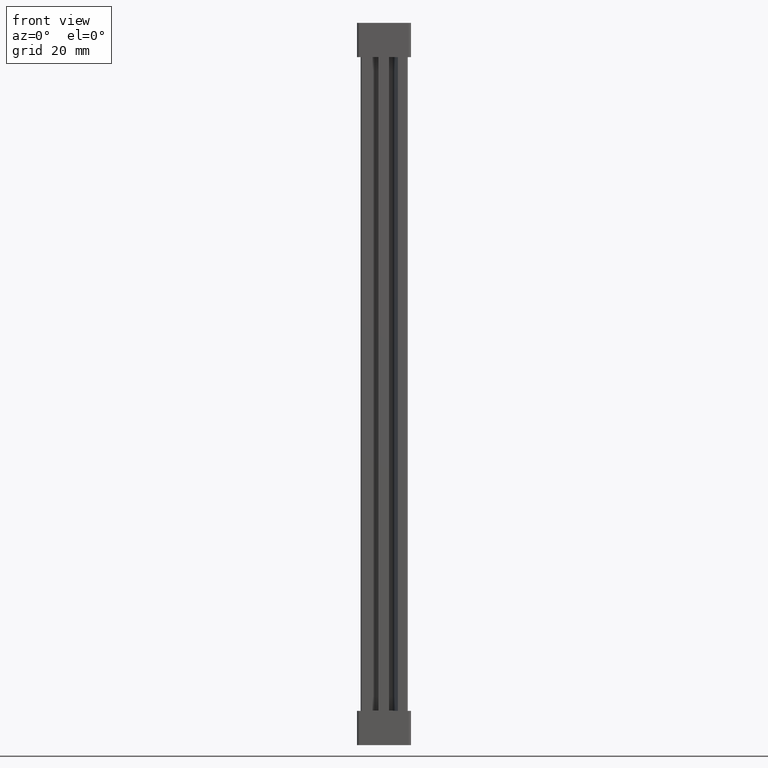
[diagram: clean part render]
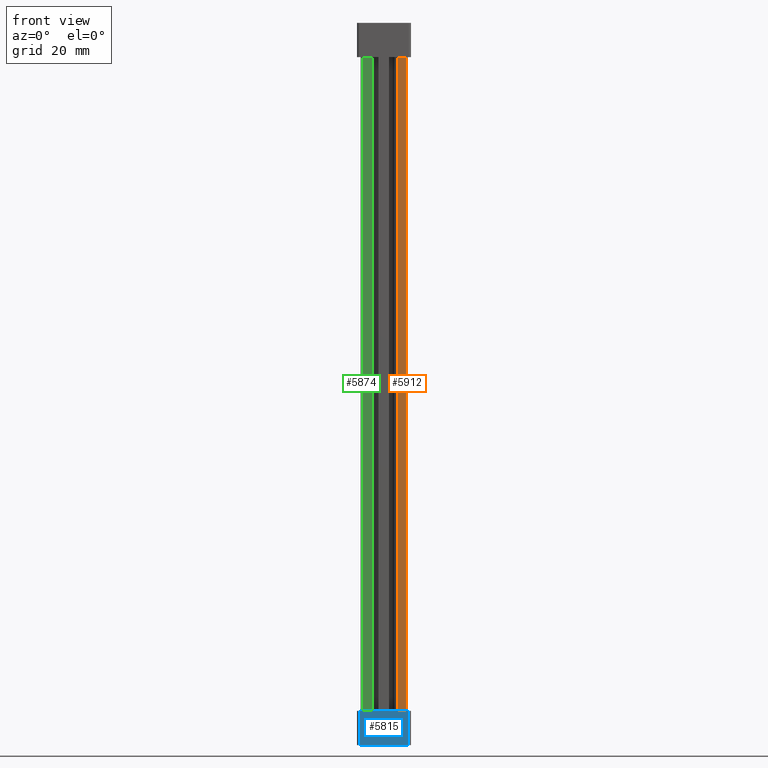
[diagram: same view with three faces highlighted in distinct colors, each labeled with its STEP entity id]
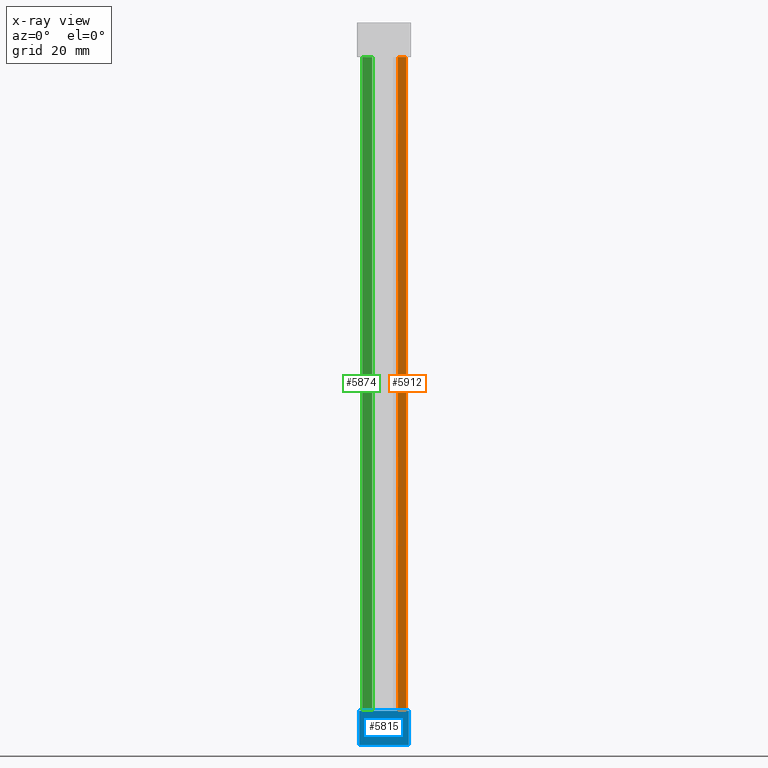
[diagram: x-ray of the same camera — body ghosted, the three highlighted faces saturated]
A machine part, front view with three faces highlighted in distinct colors.
The next image is the same camera in x-ray (body ghosted, the three faces saturated) — at least one of them is partly hidden behind the body in this view.
Their STEP definitions:

[orange] entity #5912 — the highlighted planar face has unit normal (0, 1, 0).
#1205 = EDGE_CURVE ( 'NONE', #21218, #21220, #10661, .T. ) ;
#1261 = EDGE_CURVE ( 'NONE', #21250, #21349, #5215, .T. ) ;
#1325 = EDGE_CURVE ( 'NONE', #21349, #21218, #5433, .T. ) ;
#1327 = EDGE_CURVE ( 'NONE', #21220, #21250, #5446, .T. ) ;
#2368 = CARTESIAN_POINT ( 'NONE',  ( 13.17637477970035000, -4.996003610813204400E-013, 208.6000000000520600 ) ) ;
#2399 = CARTESIAN_POINT ( 'NONE',  ( 13.17637477970035000, -4.996003610813204400E-013, 10.39999999994795100 ) ) ;
#2475 = CARTESIAN_POINT ( 'NONE',  ( 10.67385165201981100, -3.885780586188047900E-013, 10.39999999994670300 ) ) ;
#2497 = CARTESIAN_POINT ( 'NONE',  ( 10.67385165201981100, -3.885780586188047900E-013, 208.6000000000532900 ) ) ;
#4615 = AXIS2_PLACEMENT_3D ( 'NONE', #18451, #18422, #18454 ) ;
#5215 = LINE ( 'NONE', #5243, #18860 ) ;
#5234 = DIRECTION ( 'NONE',  ( 0.0000000000000000000, -0.0000000000000000000, 1.000000000000000000 ) ) ;
#5243 = CARTESIAN_POINT ( 'NONE',  ( 10.67385165201983800, -4.996003610813204400E-013, 219.0000000000000000 ) ) ;
#5433 = LINE ( 'NONE', #5442, #19048 ) ;
#5442 = CARTESIAN_POINT ( 'NONE',  ( 6.466000000103465900, -4.996003610813204400E-013, 208.6000000000553900 ) ) ;
#5446 = LINE ( 'NONE', #5468, #19054 ) ;
#5458 = DIRECTION ( 'NONE',  ( -1.000000000000000000, 0.0000000000000000000, -4.965472477636011600E-013 ) ) ;
#5468 = CARTESIAN_POINT ( 'NONE',  ( 6.466000000103465900, -4.996003610813204400E-013, 10.39999999994461400 ) ) ;
#5477 = DIRECTION ( 'NONE',  ( 1.000000000000000000, 0.0000000000000000000, -4.965472477636011600E-013 ) ) ;
#5912 = ADVANCED_FACE ( 'NONE', ( #18418 ), #18404, .F. ) ;
#10661 = LINE ( 'NONE', #10662, #18730 ) ;
#10662 = CARTESIAN_POINT ( 'NONE',  ( 13.17637477970035000, -4.996003610813204400E-013, 219.0000000000000000 ) ) ;
#10673 = DIRECTION ( 'NONE',  ( -0.0000000000000000000, 0.0000000000000000000, -1.000000000000000000 ) ) ;
#18111 = EDGE_LOOP ( 'NONE', ( #22663, #22659, #22679, #22697 ) ) ;
#18404 = PLANE ( 'NONE',  #4615 ) ;
#18418 = FACE_OUTER_BOUND ( 'NONE', #18111, .T. ) ;
#18422 = DIRECTION ( 'NONE',  ( 0.0000000000000000000, 1.000000000000000000, 0.0000000000000000000 ) ) ;
#18451 = CARTESIAN_POINT ( 'NONE',  ( 6.525548534933081500, -4.996003610813204400E-013, 219.0000000000000000 ) ) ;
#18454 = DIRECTION ( 'NONE',  ( 0.0000000000000000000, -0.0000000000000000000, 1.000000000000000000 ) ) ;
#18730 = VECTOR ( 'NONE', #10673, 1000.000000000000000 ) ;
#18860 = VECTOR ( 'NONE', #5234, 1000.000000000000000 ) ;
#19048 = VECTOR ( 'NONE', #5477, 1000.000000000000000 ) ;
#19054 = VECTOR ( 'NONE', #5458, 1000.000000000000000 ) ;
#21218 = VERTEX_POINT ( 'NONE', #2368 ) ;
#21220 = VERTEX_POINT ( 'NONE', #2399 ) ;
#21250 = VERTEX_POINT ( 'NONE', #2475 ) ;
#21349 = VERTEX_POINT ( 'NONE', #2497 ) ;
#22659 = ORIENTED_EDGE ( 'NONE', *, *, #1261, .F. ) ;
#22663 = ORIENTED_EDGE ( 'NONE', *, *, #1325, .F. ) ;
#22679 = ORIENTED_EDGE ( 'NONE', *, *, #1327, .F. ) ;
#22697 = ORIENTED_EDGE ( 'NONE', *, *, #1205, .F. ) ;

[blue] entity #5815 — the highlighted planar face has unit normal (0, 1, -0).
#445 = EDGE_CURVE ( 'NONE', #21339, #21347, #3916, .T. ) ;
#466 = EDGE_CURVE ( 'NONE', #21303, #21339, #3956, .T. ) ;
#1301 = EDGE_CURVE ( 'NONE', #21347, #21230, #5345, .T. ) ;
#1333 = EDGE_CURVE ( 'NONE', #21230, #21303, #5443, .T. ) ;
#2413 = CARTESIAN_POINT ( 'NONE',  ( 13.91600000010401100, -1.000000000000389500, 10.39999999994831200 ) ) ;
#2526 = CARTESIAN_POINT ( 'NONE',  ( -0.9839999998907414900, -1.000000000000389500, -5.535914608667535900E-011 ) ) ;
#2531 = CARTESIAN_POINT ( 'NONE',  ( 13.91600000010659200, -1.000000000000389500, -5.165984827415481800E-011 ) ) ;
#2534 = CARTESIAN_POINT ( 'NONE',  ( -0.9839999998907389400, -1.000000000000389500, 10.39999999994091500 ) ) ;
#3916 = LINE ( 'NONE', #3923, #15908 ) ;
#3917 = DIRECTION ( 'NONE',  ( 0.0000000000000000000, 0.0000000000000000000, 1.000000000000000000 ) ) ;
#3923 = CARTESIAN_POINT ( 'NONE',  ( -0.9839999998907389400, -1.000000000000389500, 9.199999999944614300 ) ) ;
#3956 = LINE ( 'NONE', #3957, #15968 ) ;
#3957 = CARTESIAN_POINT ( 'NONE',  ( 6.466000000104061800, -1.000000000000389500, -5.165984827415481800E-011 ) ) ;
#4015 = DIRECTION ( 'NONE',  ( -1.000000000000000000, 0.0000000000000000000, -0.0000000000000000000 ) ) ;
#4532 = AXIS2_PLACEMENT_3D ( 'NONE', #9952, #9946, #9950 ) ;
#5345 = LINE ( 'NONE', #5362, #18976 ) ;
#5362 = CARTESIAN_POINT ( 'NONE',  ( 6.466000000103465900, -1.000000000000389500, 10.39999999994461400 ) ) ;
#5377 = DIRECTION ( 'NONE',  ( 1.000000000000000000, 0.0000000000000000000, 4.965472477636011600E-013 ) ) ;
#5434 = DIRECTION ( 'NONE',  ( -0.0000000000000000000, -0.0000000000000000000, -1.000000000000000000 ) ) ;
#5443 = LINE ( 'NONE', #5460, #19104 ) ;
#5460 = CARTESIAN_POINT ( 'NONE',  ( 13.91600000010401100, -1.000000000000389500, 9.199999999944614300 ) ) ;
#5815 = ADVANCED_FACE ( 'NONE', ( #9927 ), #9963, .F. ) ;
#9927 = FACE_OUTER_BOUND ( 'NONE', #18135, .T. ) ;
#9946 = DIRECTION ( 'NONE',  ( 0.0000000000000000000, 1.000000000000000000, -0.0000000000000000000 ) ) ;
#9950 = DIRECTION ( 'NONE',  ( 0.0000000000000000000, 0.0000000000000000000, 1.000000000000000000 ) ) ;
#9952 = CARTESIAN_POINT ( 'NONE',  ( 6.466000000104061800, -1.000000000000389500, 9.199999999944614300 ) ) ;
#9963 = PLANE ( 'NONE',  #4532 ) ;
#15908 = VECTOR ( 'NONE', #3917, 1000.000000000000000 ) ;
#15968 = VECTOR ( 'NONE', #4015, 1000.000000000000000 ) ;
#18135 = EDGE_LOOP ( 'NONE', ( #21931, #22114, #21914, #22109 ) ) ;
#18976 = VECTOR ( 'NONE', #5377, 1000.000000000000000 ) ;
#19104 = VECTOR ( 'NONE', #5434, 1000.000000000000000 ) ;
#21230 = VERTEX_POINT ( 'NONE', #2413 ) ;
#21303 = VERTEX_POINT ( 'NONE', #2531 ) ;
#21339 = VERTEX_POINT ( 'NONE', #2526 ) ;
#21347 = VERTEX_POINT ( 'NONE', #2534 ) ;
#21914 = ORIENTED_EDGE ( 'NONE', *, *, #466, .F. ) ;
#21931 = ORIENTED_EDGE ( 'NONE', *, *, #1301, .F. ) ;
#22109 = ORIENTED_EDGE ( 'NONE', *, *, #1333, .F. ) ;
#22114 = ORIENTED_EDGE ( 'NONE', *, *, #445, .F. ) ;

[green] entity #5874 — the highlighted planar face has unit normal (0, 1, 0).
#412 = EDGE_CURVE ( 'NONE', #21431, #21255, #3775, .T. ) ;
#468 = EDGE_CURVE ( 'NONE', #21255, #21274, #3963, .T. ) ;
#1344 = EDGE_CURVE ( 'NONE', #21274, #21387, #5506, .T. ) ;
#1466 = EDGE_CURVE ( 'NONE', #21387, #21431, #9235, .T. ) ;
#2429 = CARTESIAN_POINT ( 'NONE',  ( 2.900000000000013700, 0.0000000000000000000, 10.39999999994284400 ) ) ;
#2439 = CARTESIAN_POINT ( 'NONE',  ( 2.900000000000013700, 0.0000000000000000000, 208.6000000000571500 ) ) ;
#2572 = CARTESIAN_POINT ( 'NONE',  ( -0.1239999999999999300, -1.249000902703301100E-013, 10.39999999994134300 ) ) ;
#2667 = CARTESIAN_POINT ( 'NONE',  ( -0.1239999999999999300, -1.249000902703301100E-013, 208.6000000000586600 ) ) ;
#3775 = LINE ( 'NONE', #3839, #15894 ) ;
#3829 = DIRECTION ( 'NONE',  ( 1.000000000000000000, 0.0000000000000000000, -4.965472477636011600E-013 ) ) ;
#3839 = CARTESIAN_POINT ( 'NONE',  ( 6.466000000103465900, 0.0000000000000000000, 208.6000000000553900 ) ) ;
#3963 = LINE ( 'NONE', #3969, #16022 ) ;
#3969 = CARTESIAN_POINT ( 'NONE',  ( 2.900000000000013700, 0.0000000000000000000, 219.0000000000000000 ) ) ;
#4014 = DIRECTION ( 'NONE',  ( -0.0000000000000000000, 0.0000000000000000000, -1.000000000000000000 ) ) ;
#4573 = AXIS2_PLACEMENT_3D ( 'NONE', #9630, #9604, #9653 ) ;
#5491 = CARTESIAN_POINT ( 'NONE',  ( 6.466000000103465900, 0.0000000000000000000, 10.39999999994461400 ) ) ;
#5506 = LINE ( 'NONE', #5491, #19118 ) ;
#5516 = DIRECTION ( 'NONE',  ( -1.000000000000000000, 0.0000000000000000000, -4.965472477636011600E-013 ) ) ;
#5874 = ADVANCED_FACE ( 'NONE', ( #9643 ), #9633, .F. ) ;
#9235 = LINE ( 'NONE', #9261, #19396 ) ;
#9250 = DIRECTION ( 'NONE',  ( 0.0000000000000000000, 0.0000000000000000000, 1.000000000000000000 ) ) ;
#9261 = CARTESIAN_POINT ( 'NONE',  ( -0.1239999999999999000, -2.775557561562891400E-014, 219.0000000000000000 ) ) ;
#9604 = DIRECTION ( 'NONE',  ( 0.0000000000000000000, 1.000000000000000000, 0.0000000000000000000 ) ) ;
#9630 = CARTESIAN_POINT ( 'NONE',  ( 6.525548534933081500, 0.0000000000000000000, 219.0000000000000000 ) ) ;
#9633 = PLANE ( 'NONE',  #4573 ) ;
#9643 = FACE_OUTER_BOUND ( 'NONE', #18100, .T. ) ;
#9653 = DIRECTION ( 'NONE',  ( 0.0000000000000000000, -0.0000000000000000000, 1.000000000000000000 ) ) ;
#15894 = VECTOR ( 'NONE', #3829, 1000.000000000000000 ) ;
#16022 = VECTOR ( 'NONE', #4014, 1000.000000000000000 ) ;
#18100 = EDGE_LOOP ( 'NONE', ( #22777, #22739, #22738, #22763 ) ) ;
#19118 = VECTOR ( 'NONE', #5516, 1000.000000000000000 ) ;
#19396 = VECTOR ( 'NONE', #9250, 1000.000000000000000 ) ;
#21255 = VERTEX_POINT ( 'NONE', #2439 ) ;
#21274 = VERTEX_POINT ( 'NONE', #2429 ) ;
#21387 = VERTEX_POINT ( 'NONE', #2572 ) ;
#21431 = VERTEX_POINT ( 'NONE', #2667 ) ;
#22738 = ORIENTED_EDGE ( 'NONE', *, *, #1344, .F. ) ;
#22739 = ORIENTED_EDGE ( 'NONE', *, *, #1466, .F. ) ;
#22763 = ORIENTED_EDGE ( 'NONE', *, *, #468, .F. ) ;
#22777 = ORIENTED_EDGE ( 'NONE', *, *, #412, .F. ) ;